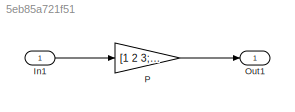
MODEL slx_5eb85a721f51
KIND model
CONFIG AbsTol = auto
CONFIG EnableMultiTasking = off
CONFIG FixedStep = auto
CONFIG MaxStep = auto
CONFIG MinStep = auto
CONFIG RelTol = 1e-3
CONFIG SampleTimeConstraint = Unconstrained
CONFIG Solver = FixedStepDiscrete
CONFIG SolverName = FixedStepDiscrete
CONFIG StartTime = 0.0
CONFIG StopTime = 10.0
BLOCK [Inport] In1
  IconDisplay = Port number
  PortDimensions = [2,3]
BLOCK [Outport] Out1
  IconDisplay = Port number
BLOCK [Gain] P
  Gain = [1 2 3;4 5 6]
  OutDataTypeStr = single
  OutMax = 10
  OutMin = 0.
  ParamDataTypeStr = int8
  RndMeth = Round
  SaturateOnIntegerOverflow = off
LINE In1:1 -> P:1
LINE P:1 -> Out1:1
